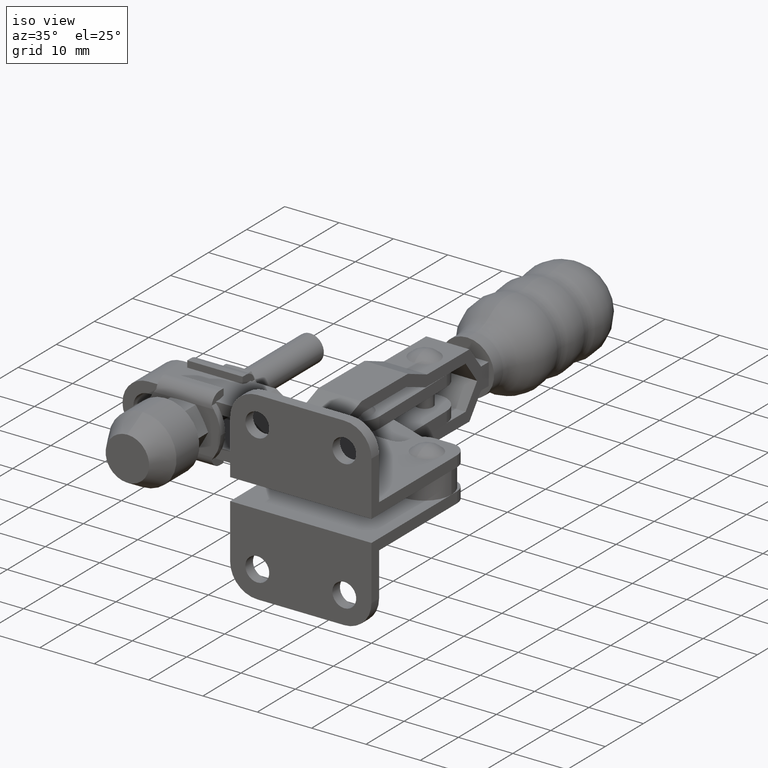
[diagram: clean part render]
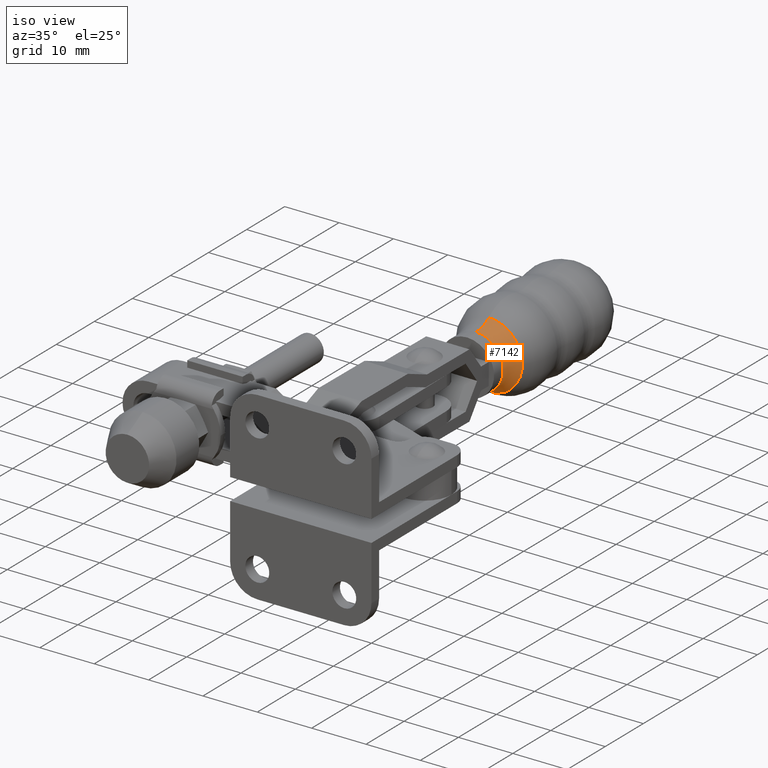
[diagram: same view with one face highlighted and labeled with its STEP entity id]
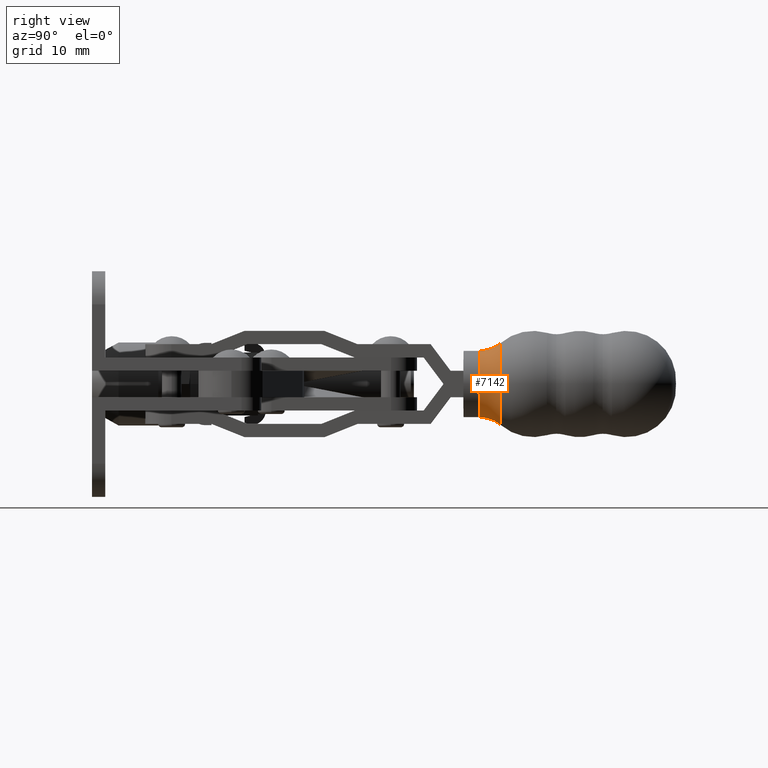
[diagram: same view with one face highlighted and labeled with its STEP entity id]
A machine part, iso view. The second image highlights one B-rep face of the part: STEP entity #7142.
A second angle (right view) of the same face is appended — the face is thin or edge-on in the first view.
In plain terms, the highlighted toroidal blend (fillet) surface has major radius 10 mm and minor (blend) radius 5 mm.
Its self-contained STEP definition (entity closure, byte-faithful):
#123 = DIRECTION ( 'NONE',  ( -0.008715064430423693000, -0.9999620231048644800, 4.848667521160324900E-019 ) ) ;
#132 = TOROIDAL_SURFACE ( 'NONE', #5829, 10.00000000000000500, 4.999999999999997300 ) ;
#423 = DIRECTION ( 'NONE',  ( -4.225644984861496400E-021, -4.848483383822327100E-019, -1.000000000000000000 ) ) ;
#858 = VERTEX_POINT ( 'NONE', #2508 ) ;
#1867 = DIRECTION ( 'NONE',  ( 0.0000000000000000000, 0.0000000000000000000, -1.000000000000000000 ) ) ;
#2122 = CARTESIAN_POINT ( 'NONE',  ( -21.59583050667351500, 58.37420038033378200, -1.999999999999745100 ) ) ;
#2508 = CARTESIAN_POINT ( 'NONE',  ( -21.59583050667351500, 58.37420038033378200, 3.000000000000259300 ) ) ;
#2517 = EDGE_CURVE ( 'NONE', #3880, #858, #3702, .T. ) ;
#2544 = CARTESIAN_POINT ( 'NONE',  ( -21.56750989942086200, 61.62369233188626100, 4.200000000000202700 ) ) ;
#2836 = DIRECTION ( 'NONE',  ( 0.9999620231048644800, -0.008715064430423693000, -1.250660598520618100E-016 ) ) ;
#2853 = AXIS2_PLACEMENT_3D ( 'NONE', #8793, #3585, #9662 ) ;
#3116 = CARTESIAN_POINT ( 'NONE',  ( -21.59583050667351500, 58.37420038033378200, -1.999999999999745100 ) ) ;
#3585 = DIRECTION ( 'NONE',  ( -0.9999620231048644800, 0.008715064430423693000, 2.601379937326479400E-018 ) ) ;
#3702 = CIRCLE ( 'NONE', #6215, 5.000000000000000900 ) ;
#3880 = VERTEX_POINT ( 'NONE', #11107 ) ;
#4011 = CIRCLE ( 'NONE', #5845, 6.199999999999946900 ) ;
#4322 = ORIENTED_EDGE ( 'NONE', *, *, #10748, .T. ) ;
#4366 = ORIENTED_EDGE ( 'NONE', *, *, #8150, .F. ) ;
#4560 = AXIS2_PLACEMENT_3D ( 'NONE', #8028, #2836, #8901 ) ;
#4573 = VERTEX_POINT ( 'NONE', #2544 ) ;
#4682 = DIRECTION ( 'NONE',  ( -0.008715064430423693000, -0.9999620231048644800, 4.848667521160324900E-019 ) ) ;
#4822 = CARTESIAN_POINT ( 'NONE',  ( -21.56750989942086200, 61.62369233188626100, -8.199999999999693800 ) ) ;
#5131 = ORIENTED_EDGE ( 'NONE', *, *, #8821, .T. ) ;
#5502 = EDGE_LOOP ( 'NONE', ( #4366, #8773, #4322, #5131 ) ) ;
#5615 = DIRECTION ( 'NONE',  ( -0.008715064430423693000, -0.9999620231048644800, 4.848667521160324900E-019 ) ) ;
#5674 = CIRCLE ( 'NONE', #2853, 4.999999999999997300 ) ;
#5829 = AXIS2_PLACEMENT_3D ( 'NONE', #2122, #5615, #423 ) ;
#5845 = AXIS2_PLACEMENT_3D ( 'NONE', #9876, #4682, #10733 ) ;
#6215 = AXIS2_PLACEMENT_3D ( 'NONE', #3116, #123, #1867 ) ;
#7142 = ADVANCED_FACE ( 'NONE', ( #9916 ), #132, .F. ) ;
#8028 = CARTESIAN_POINT ( 'NONE',  ( -21.59583050667351500, 58.37420038033378200, 8.000000000000261100 ) ) ;
#8150 = EDGE_CURVE ( 'NONE', #858, #4573, #10666, .T. ) ;
#8773 = ORIENTED_EDGE ( 'NONE', *, *, #2517, .F. ) ;
#8793 = CARTESIAN_POINT ( 'NONE',  ( -21.59583050667351500, 58.37420038033378200, -11.99999999999975100 ) ) ;
#8821 = EDGE_CURVE ( 'NONE', #10401, #4573, #4011, .T. ) ;
#8901 = DIRECTION ( 'NONE',  ( 0.008715064430423613200, 0.9999620231048644800, 0.0000000000000000000 ) ) ;
#9662 = DIRECTION ( 'NONE',  ( -0.008715064430423613200, -0.9999620231048644800, 0.0000000000000000000 ) ) ;
#9876 = CARTESIAN_POINT ( 'NONE',  ( -21.56750989942086200, 61.62369233188626100, -1.999999999999745100 ) ) ;
#9916 = FACE_OUTER_BOUND ( 'NONE', #5502, .T. ) ;
#10401 = VERTEX_POINT ( 'NONE', #4822 ) ;
#10666 = CIRCLE ( 'NONE', #4560, 4.999999999999997300 ) ;
#10733 = DIRECTION ( 'NONE',  ( 0.0000000000000000000, 0.0000000000000000000, -1.000000000000000000 ) ) ;
#10748 = EDGE_CURVE ( 'NONE', #3880, #10401, #5674, .T. ) ;
#11107 = CARTESIAN_POINT ( 'NONE',  ( -21.59583050667351500, 58.37420038033378200, -6.999999999999749500 ) ) ;